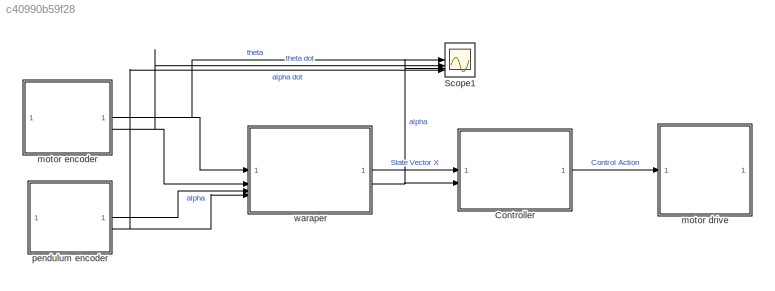
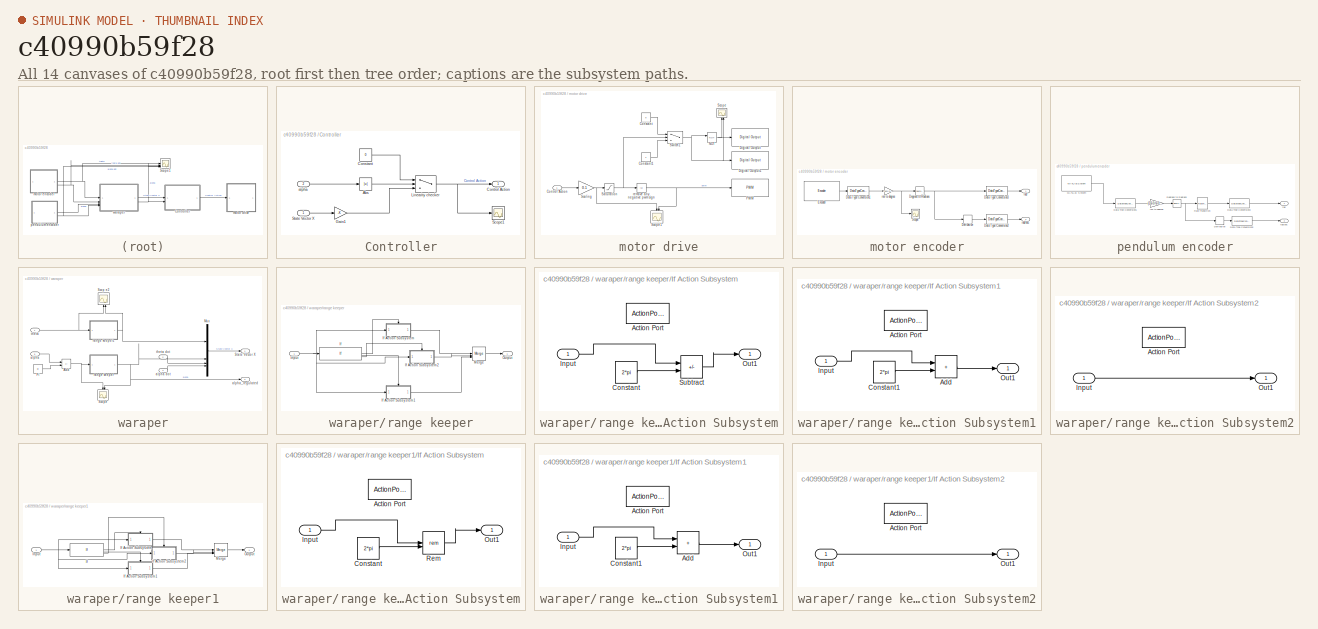
[diagram: thumbnail index - all 14 canvases of the model, root first then tree order]
MODEL slx_c40990b59f28
KIND model
CONFIG AbsTol = auto
CONFIG EnableMultiTasking = on
CONFIG FixedStep = 0.01
CONFIG MaxStep = auto
CONFIG MinStep = auto
CONFIG RelTol = 1e-3
CONFIG SampleTimeConstraint = Unconstrained
CONFIG SolverName = ode3
CONFIG StartTime = 0.0
CONFIG StopTime = inf
BLOCK [SubSystem] Controller
BLOCK [Abs] Controller/Abs
  SaturateOnIntegerOverflow = off
BLOCK [Constant] Controller/Constant
  Value = 0
BLOCK [Outport] Controller/Control Action 
BLOCK [Gain] Controller/Gain1
  Gain = -K
  Multiplication = Matrix(K*u)
BLOCK [Switch] Controller/Linearity checker
  Criteria = u2 > Threshold
  InputSameDT = off
  SaturateOnIntegerOverflow = off
  Threshold = pi/7
BLOCK [Scope] Controller/Scope1
  Floating = off
  NumInputPorts = 1
  ScopeSpecificationString = Simulink.scopes.TimeScopeBlockCfg('CurrentConfiguration', extmgr.ConfigurationSet(extmgr.Configuration('Core','General UI',true),extmgr.Configuration('Core','Source UI',true),extmgr.Configuration('Sources','WiredSimulink',true,'DataLoggingVariableName','ScopeData2'),extmgr.Configuration('Visuals','Time Domain',true,'SerializedDisplays',{struct('MinYLimReal','-1.00000','MaxYLimReal','1.00000','YLab...<+1412ch>
BLOCK [Inport] Controller/State Vector X
BLOCK [Inport] Controller/alpha
  Port = 2
BLOCK [Scope] Scope1
  Floating = off
  NumInputPorts = 4
  ScopeSpecificationString = Simulink.scopes.TimeScopeBlockCfg('CurrentConfiguration', extmgr.ConfigurationSet(extmgr.Configuration('Core','General UI',true),extmgr.Configuration('Core','Source UI',true),extmgr.Configuration('Sources','WiredSimulink',true,'DataLoggingVariableName','ScopeData1'),extmgr.Configuration('Visuals','Time Domain',true,'SerializedDisplays',{struct('MinYLimReal','-2.2692','MaxYLimReal','-0.2692','YLabe...<+3475ch>
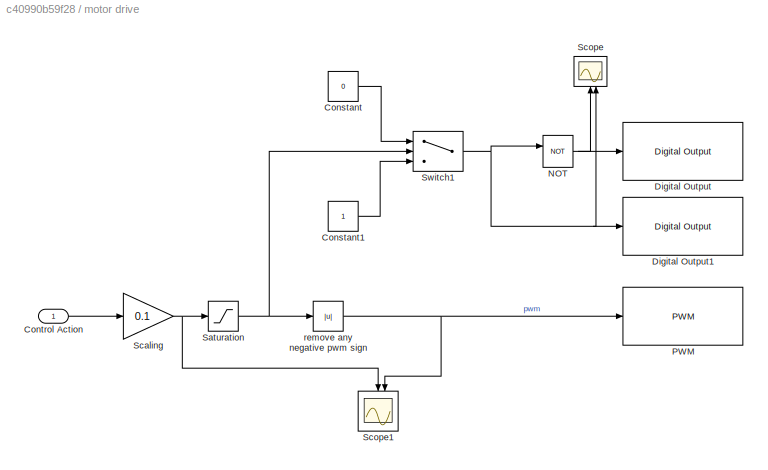
BLOCK [SubSystem] motor drive
BLOCK [Constant] motor drive/Constant
  Value = 0
BLOCK [Constant] motor drive/Constant1
BLOCK [Inport] motor drive/Control Action
BLOCK [Reference] motor drive/Digital Output  REF=arduinolib/Digital Output
  SourceBlock = arduinolib/Digital Output
  SourceType = Arduino Digital Output
BLOCK [Reference] motor drive/Digital Output1  REF=arduinolib/Digital Output
  SourceBlock = arduinolib/Digital Output
  SourceType = Arduino Digital Output
BLOCK [Logic] motor drive/NOT
  AllPortsSameDT = off
  IconShape = distinctive
  Operator = NOT
  OutDataTypeStr = boolean
BLOCK [Reference] motor drive/PWM  REF=arduinolib/PWM
  SourceBlock = arduinolib/PWM
  SourceType = Arduino PWM
BLOCK [Saturate] motor drive/Saturation
  LowerLimit = -255
  UpperLimit = 255
BLOCK [Gain] motor drive/Scaling
  Gain = 0.1
BLOCK [Scope] motor drive/Scope
  Floating = off
  NameLocation = right
  NumInputPorts = 2
  ScopeSpecificationString = Simulink.scopes.TimeScopeBlockCfg('CurrentConfiguration', extmgr.ConfigurationSet(extmgr.Configuration('Core','General UI',true),extmgr.Configuration('Core','Source UI',true),extmgr.Configuration('Sources','WiredSimulink',true,'DataLoggingVariableName','ScopeData1'),extmgr.Configuration('Visuals','Time Domain',true,'SerializedDisplays',{struct('MinYLimReal','0.9','MaxYLimReal','1.1','YLabelReal','...<+2064ch>
BLOCK [Scope] motor drive/Scope1
  Floating = off
  NameLocation = left
  NumInputPorts = 2
  ScopeSpecificationString = Simulink.scopes.TimeScopeBlockCfg('CurrentConfiguration', extmgr.ConfigurationSet(extmgr.Configuration('Core','General UI',true),extmgr.Configuration('Core','Source UI',true),extmgr.Configuration('Sources','WiredSimulink',true,'DataLoggingVariableName','ScopeData2'),extmgr.Configuration('Visuals','Time Domain',true,'SerializedDisplays',{struct('MinYLimReal','-23613.36963','MaxYLimReal','27454.604'...<+2204ch>
BLOCK [Switch] motor drive/Switch1
  InputSameDT = off
  SaturateOnIntegerOverflow = off
BLOCK [Abs] motor drive/remove any negative pwm sign
  SaturateOnIntegerOverflow = off
BLOCK [SubSystem] motor encoder
BLOCK [DataTypeConversion] motor encoder/Data Type Conversion1
  OutDataTypeStr = double
  RndMeth = Floor
  SaturateOnIntegerOverflow = off
BLOCK [DataTypeConversion] motor encoder/Data Type Conversion2
  RndMeth = Floor
  SaturateOnIntegerOverflow = off
BLOCK [DataTypeConversion] motor encoder/Data Type Conversion3
  RndMeth = Floor
  SaturateOnIntegerOverflow = off
BLOCK [Reference] motor encoder/Degrees to Radians  REF=simulink_extras/Transformations/Degrees to
Radians
  SourceBlock = simulink_extras/Transformations/Degrees to\nRadians
  SourceType = DegreesToRadians
BLOCK [Derivative] motor encoder/Derivative
BLOCK [Reference] motor encoder/Encoder  REF=arduinosensorlib/Encoder
  SourceBlock = arduinosensorlib/Encoder
  SourceType = Arduino Rotary Encoder
BLOCK [Scope] motor encoder/Scope
  Floating = off
  NumInputPorts = 1
  ScopeSpecificationString = Simulink.scopes.TimeScopeBlockCfg('CurrentConfiguration', extmgr.ConfigurationSet(extmgr.Configuration('Core','General UI',true),extmgr.Configuration('Core','Source UI',true),extmgr.Configuration('Sources','WiredSimulink',true,'DataLoggingVariableName','ScopeData1'),extmgr.Configuration('Visuals','Time Domain',true,'SerializedDisplays',{struct('MinYLimReal','-771.795','MaxYLimReal','480.55501','YL...<+1430ch>
BLOCK [Outport] motor encoder/rad
BLOCK [Outport] motor encoder/rad//sec
  Port = 2
BLOCK [Gain] motor encoder/rev to degree
  Gain = (360/(500*4))
BLOCK [SubSystem] pendulum encoder
BLOCK [DataTypeConversion] pendulum encoder/Data Type Conversion1
  OutDataTypeStr = double
  RndMeth = Floor
  SaturateOnIntegerOverflow = off
BLOCK [DataTypeConversion] pendulum encoder/Data Type Conversion2
  RndMeth = Floor
  SaturateOnIntegerOverflow = off
BLOCK [DataTypeConversion] pendulum encoder/Data Type Conversion3
  RndMeth = Floor
  SaturateOnIntegerOverflow = off
BLOCK [Reference] pendulum encoder/Degrees to Radians  REF=simulink_extras/Transformations/Degrees to
Radians
  SourceBlock = simulink_extras/Transformations/Degrees to\nRadians
  SourceType = DegreesToRadians
BLOCK [Derivative] pendulum encoder/Derivative
BLOCK [MATLABSystem] pendulum encoder/MATLAB System
  Encoder = 0
  MaskDisplay = disp('Encoder');\nport_label('output',1,'y');
  MaskType = Encoder_arduino
  PinA = 18
  PinB = 19
  SampleTime = 0.1
  System = Encoder_arduino
BLOCK [RateTransition] pendulum encoder/Rate Transition
BLOCK [Outport] pendulum encoder/rad
BLOCK [Outport] pendulum encoder/rad//sec
  Port = 2
BLOCK [Gain] pendulum encoder/rev to degree
  Gain = (360/600)/4
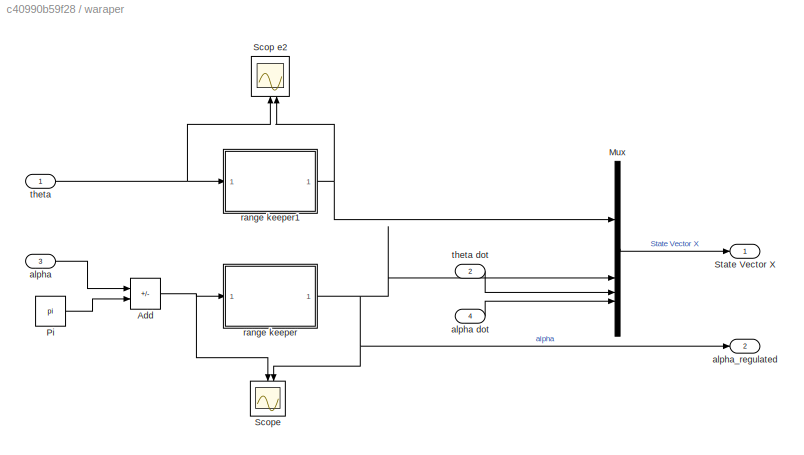
BLOCK [SubSystem] waraper
BLOCK [Sum] waraper/Add
  IconShape = rectangular
  Inputs = +-
BLOCK [Mux] waraper/Mux
  DisplayOption = bar
BLOCK [Constant] waraper/Pi
  OutDataTypeStr = Inherit: Inherit via back propagation
  Value = pi
BLOCK [Scope] waraper/Scop e2
  Floating = off
  NameLocation = right
  NumInputPorts = 2
  ScopeSpecificationString = Simulink.scopes.TimeScopeBlockCfg('CurrentConfiguration', extmgr.ConfigurationSet(extmgr.Configuration('Core','General UI',true),extmgr.Configuration('Core','Source UI',true),extmgr.Configuration('Sources','WiredSimulink',true,'DataLoggingVariableName','ScopeData1'),extmgr.Configuration('Visuals','Time Domain',true,'SerializedDisplays',{struct('MinYLimReal','-1.00000','MaxYLimReal','1.00000','YLab...<+1987ch>
BLOCK [Scope] waraper/Scope
  Floating = off
  NameLocation = right
  NumInputPorts = 2
  ScopeSpecificationString = Simulink.scopes.TimeScopeBlockCfg('CurrentConfiguration', extmgr.ConfigurationSet(extmgr.Configuration('Core','General UI',true),extmgr.Configuration('Core','Source UI',true),extmgr.Configuration('Sources','WiredSimulink',true),extmgr.Configuration('Visuals','Time Domain',true,'SerializedDisplays',{struct('MinYLimReal','-3.02444','MaxYLimReal','-3.01789','YLabelReal','','MinYLimMag','0.00000','Max...<+2006ch>
BLOCK [Outport] waraper/State Vector X
BLOCK [Inport] waraper/alpha
  Port = 3
BLOCK [Inport] waraper/alpha dot
  Port = 4
BLOCK [Outport] waraper/alpha_regulated 
  Port = 2
BLOCK [SubSystem] waraper/range keeper
BLOCK [If] waraper/range keeper/If
  ElseIfExpressions = u1 <= - 6.28,u1<3.14&u1>=-3.14
  IfExpression = u1 >= 3.14
  ShowElse = off
BLOCK [SubSystem] waraper/range keeper/If Action Subsystem
  TreatAsAtomicUnit = on
BLOCK [ActionPort] waraper/range keeper/If Action Subsystem/Action Port
  ActionPortLabel = if(u1 >= 3.14)
  InitializeStates = reset
BLOCK [Constant] waraper/range keeper/If Action Subsystem/Constant
  Value = 2*pi
BLOCK [Inport] waraper/range keeper/If Action Subsystem/Input
BLOCK [Outport] waraper/range keeper/If Action Subsystem/Out1
BLOCK [Sum] waraper/range keeper/If Action Subsystem/Subtract
  IconShape = rectangular
  Inputs = +-
BLOCK [SubSystem] waraper/range keeper/If Action Subsystem1
  TreatAsAtomicUnit = on
BLOCK [ActionPort] waraper/range keeper/If Action Subsystem1/Action Port
  ActionPortLabel = elseif(u1 <= - 6.28)
  InitializeStates = reset
BLOCK [Sum] waraper/range keeper/If Action Subsystem1/Add
  IconShape = rectangular
BLOCK [Constant] waraper/range keeper/If Action Subsystem1/Constant1
  Value = 2*pi
BLOCK [Inport] waraper/range keeper/If Action Subsystem1/Input
BLOCK [Outport] waraper/range keeper/If Action Subsystem1/Out1
BLOCK [SubSystem] waraper/range keeper/If Action Subsystem2
  TreatAsAtomicUnit = on
BLOCK [ActionPort] waraper/range keeper/If Action Subsystem2/Action Port
  ActionPortLabel = elseif(u1<3.14&u1>=-3.14)
BLOCK [Inport] waraper/range keeper/If Action Subsystem2/Input
BLOCK [Outport] waraper/range keeper/If Action Subsystem2/Out1
BLOCK [Inport] waraper/range keeper/Input
BLOCK [Merge] waraper/range keeper/Merge
  Inputs = 3
BLOCK [Outport] waraper/range keeper/Output
BLOCK [SubSystem] waraper/range keeper1
BLOCK [If] waraper/range keeper1/If
  ElseIfExpressions = u1 < - 6.28
  IfExpression = u1 > 6.28
BLOCK [SubSystem] waraper/range keeper1/If Action Subsystem
  TreatAsAtomicUnit = on
BLOCK [ActionPort] waraper/range keeper1/If Action Subsystem/Action Port
  ActionPortLabel = if(u1 > 6.28)
BLOCK [Constant] waraper/range keeper1/If Action Subsystem/Constant
  Value = 2*pi
BLOCK [Inport] waraper/range keeper1/If Action Subsystem/Input
BLOCK [Outport] waraper/range keeper1/If Action Subsystem/Out1
BLOCK [Math] waraper/range keeper1/If Action Subsystem/Rem
  Operator = rem
  SignedPower = on
BLOCK [SubSystem] waraper/range keeper1/If Action Subsystem1
  TreatAsAtomicUnit = on
BLOCK [ActionPort] waraper/range keeper1/If Action Subsystem1/Action Port
  ActionPortLabel = elseif(u1 < - 6.28)
BLOCK [Sum] waraper/range keeper1/If Action Subsystem1/Add
  IconShape = rectangular
BLOCK [Constant] waraper/range keeper1/If Action Subsystem1/Constant1
  Value = 2*pi
BLOCK [Inport] waraper/range keeper1/If Action Subsystem1/Input
BLOCK [Outport] waraper/range keeper1/If Action Subsystem1/Out1
BLOCK [SubSystem] waraper/range keeper1/If Action Subsystem2
  TreatAsAtomicUnit = on
BLOCK [ActionPort] waraper/range keeper1/If Action Subsystem2/Action Port
  ActionPortLabel = else
BLOCK [Inport] waraper/range keeper1/If Action Subsystem2/Input
BLOCK [Outport] waraper/range keeper1/If Action Subsystem2/Out1
BLOCK [Inport] waraper/range keeper1/Input
BLOCK [Merge] waraper/range keeper1/Merge
  Inputs = 3
BLOCK [Outport] waraper/range keeper1/Output
BLOCK [Inport] waraper/theta
BLOCK [Inport] waraper/theta dot
  Port = 2
LINE Controller/Abs:1 -> Controller/Linearity checker:2
LINE Controller/Constant:1 -> Controller/Linearity checker:1
LINE Controller/Gain1:1 -> Controller/Linearity checker:3
NET Controller/Linearity checker:1 -> Controller/Control Action :1, Controller/Scope1:1
LINE Controller/State Vector X:1 -> Controller/Gain1:1
LINE Controller/alpha:1 -> Controller/Abs:1
LINE Controller:1 -> motor drive:1
LINE motor drive/Constant1:1 -> motor drive/Switch1:3
LINE motor drive/Constant:1 -> motor drive/Switch1:1
LINE motor drive/Control Action:1 -> motor drive/Scaling:1
NET motor drive/NOT:1 -> motor drive/Digital Output:1, motor drive/Scope:1
NET motor drive/Saturation:1 -> motor drive/Switch1:2, motor drive/remove any negative pwm sign:1
NET motor drive/Scaling:1 -> motor drive/Saturation:1, motor drive/Scope1:1
NET motor drive/Switch1:1 -> motor drive/Digital Output1:1, motor drive/NOT:1, motor drive/Scope:2
NET motor drive/remove any negative pwm sign:1 -> motor drive/PWM:1, motor drive/Scope1:2
LINE motor encoder/Data Type Conversion1:1 -> motor encoder/rev to degree:1
LINE motor encoder/Data Type Conversion2:1 -> motor encoder/rad//sec:1
LINE motor encoder/Data Type Conversion3:1 -> motor encoder/rad:1
NET motor encoder/Degrees to Radians:1 -> motor encoder/Data Type Conversion3:1, motor encoder/Derivative:1
LINE motor encoder/Derivative:1 -> motor encoder/Data Type Conversion2:1
LINE motor encoder/Encoder:1 -> motor encoder/Data Type Conversion1:1
NET motor encoder/rev to degree:1 -> motor encoder/Degrees to Radians:1, motor encoder/Scope:1
NET motor encoder:1 -> Scope1:1, waraper:1
NET motor encoder:2 -> Scope1:2, waraper:2
LINE pendulum encoder/Data Type Conversion1:1 -> pendulum encoder/rev to degree:1
LINE pendulum encoder/Data Type Conversion2:1 -> pendulum encoder/rad//sec:1
LINE pendulum encoder/Data Type Conversion3:1 -> pendulum encoder/rad:1
NET pendulum encoder/Degrees to Radians:1 -> pendulum encoder/Derivative:1, pendulum encoder/Rate Transition:1
LINE pendulum encoder/Derivative:1 -> pendulum encoder/Data Type Conversion2:1
LINE pendulum encoder/MATLAB System:1 -> pendulum encoder/Data Type Conversion1:1
LINE pendulum encoder/Rate Transition:1 -> pendulum encoder/Data Type Conversion3:1
LINE pendulum encoder/rev to degree:1 -> pendulum encoder/Degrees to Radians:1
LINE pendulum encoder:1 -> waraper:3
NET pendulum encoder:2 -> Scope1:4, waraper:4
NET waraper/Add:1 -> waraper/Scope:1, waraper/range keeper:1
LINE waraper/Mux:1 -> waraper/State Vector X:1
LINE waraper/Pi:1 -> waraper/Add:2
LINE waraper/alpha dot:1 -> waraper/Mux:4
LINE waraper/alpha:1 -> waraper/Add:1
LINE waraper/range keeper/If Action Subsystem/Constant:1 -> waraper/range keeper/If Action Subsystem/Subtract:2
LINE waraper/range keeper/If Action Subsystem/Input:1 -> waraper/range keeper/If Action Subsystem/Subtract:1
LINE waraper/range keeper/If Action Subsystem/Subtract:1 -> waraper/range keeper/If Action Subsystem/Out1:1
LINE waraper/range keeper/If Action Subsystem1/Add:1 -> waraper/range keeper/If Action Subsystem1/Out1:1
LINE waraper/range keeper/If Action Subsystem1/Constant1:1 -> waraper/range keeper/If Action Subsystem1/Add:2
LINE waraper/range keeper/If Action Subsystem1/Input:1 -> waraper/range keeper/If Action Subsystem1/Add:1
LINE waraper/range keeper/If Action Subsystem1:1 -> waraper/range keeper/Merge:3
LINE waraper/range keeper/If Action Subsystem2/Input:1 -> waraper/range keeper/If Action Subsystem2/Out1:1
LINE waraper/range keeper/If Action Subsystem2:1 -> waraper/range keeper/Merge:2
LINE waraper/range keeper/If Action Subsystem:1 -> waraper/range keeper/Merge:1
LINE waraper/range keeper/If:1 -> waraper/range keeper/If Action Subsystem:ifaction
LINE waraper/range keeper/If:2 -> waraper/range keeper/If Action Subsystem1:ifaction
LINE waraper/range keeper/If:3 -> waraper/range keeper/If Action Subsystem2:ifaction
NET waraper/range keeper/Input:1 -> waraper/range keeper/If Action Subsystem1:1, waraper/range keeper/If Action Subsystem2:1, waraper/range keeper/If Action Subsystem:1, waraper/range keeper/If:1
LINE waraper/range keeper/Merge:1 -> waraper/range keeper/Output:1
LINE waraper/range keeper1/If Action Subsystem/Constant:1 -> waraper/range keeper1/If Action Subsystem/Rem:2
LINE waraper/range keeper1/If Action Subsystem/Input:1 -> waraper/range keeper1/If Action Subsystem/Rem:1
LINE waraper/range keeper1/If Action Subsystem/Rem:1 -> waraper/range keeper1/If Action Subsystem/Out1:1
LINE waraper/range keeper1/If Action Subsystem1/Add:1 -> waraper/range keeper1/If Action Subsystem1/Out1:1
LINE waraper/range keeper1/If Action Subsystem1/Constant1:1 -> waraper/range keeper1/If Action Subsystem1/Add:2
LINE waraper/range keeper1/If Action Subsystem1/Input:1 -> waraper/range keeper1/If Action Subsystem1/Add:1
LINE waraper/range keeper1/If Action Subsystem1:1 -> waraper/range keeper1/Merge:3
LINE waraper/range keeper1/If Action Subsystem2/Input:1 -> waraper/range keeper1/If Action Subsystem2/Out1:1
LINE waraper/range keeper1/If Action Subsystem2:1 -> waraper/range keeper1/Merge:2
LINE waraper/range keeper1/If Action Subsystem:1 -> waraper/range keeper1/Merge:1
LINE waraper/range keeper1/If:1 -> waraper/range keeper1/If Action Subsystem:ifaction
LINE waraper/range keeper1/If:2 -> waraper/range keeper1/If Action Subsystem1:ifaction
LINE waraper/range keeper1/If:3 -> waraper/range keeper1/If Action Subsystem2:ifaction
NET waraper/range keeper1/Input:1 -> waraper/range keeper1/If Action Subsystem1:1, waraper/range keeper1/If Action Subsystem2:1, waraper/range keeper1/If Action Subsystem:1, waraper/range keeper1/If:1
LINE waraper/range keeper1/Merge:1 -> waraper/range keeper1/Output:1
NET waraper/range keeper1:1 -> waraper/Mux:1, waraper/Scop e2:2
NET waraper/range keeper:1 -> waraper/Mux:2, waraper/Scope:2, waraper/alpha_regulated :1
LINE waraper/theta dot:1 -> waraper/Mux:3
NET waraper/theta:1 -> waraper/Scop e2:1, waraper/range keeper1:1
LINE waraper:1 -> Controller:1
NET waraper:2 -> Controller:2, Scope1:3
note: NET lines group one-source signal fan-out (src -> all destinations, sorted); 1:1 wires keep LINE
